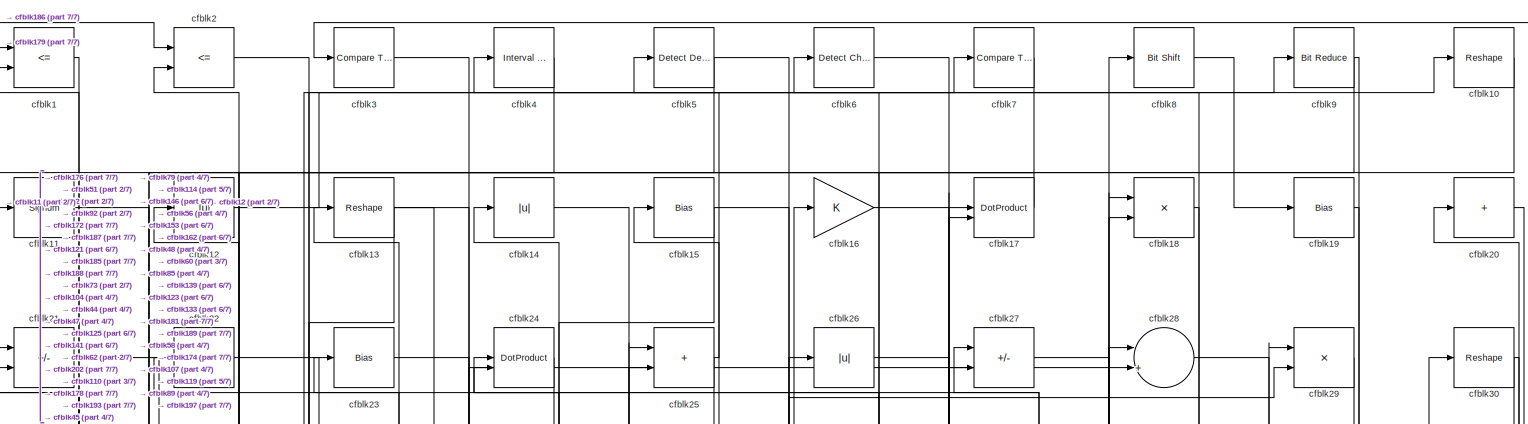
[diagram: root canvas - part 1/7, full width, top band]
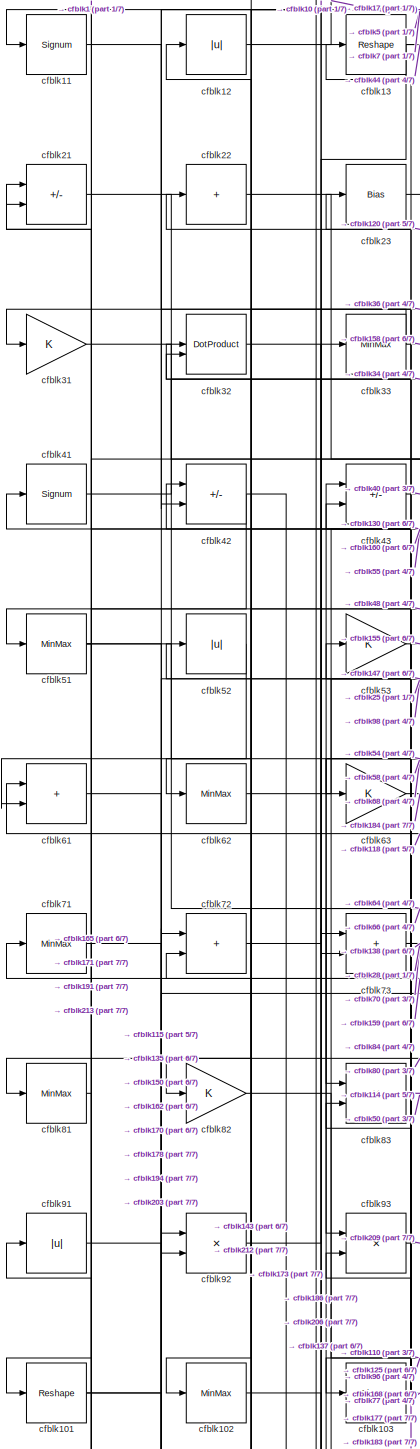
[diagram: root canvas - part 2/7, top left region]
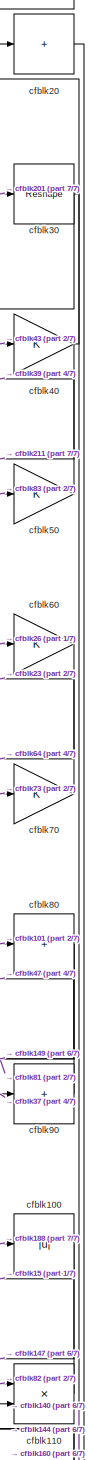
[diagram: root canvas - part 3/7, top right region]
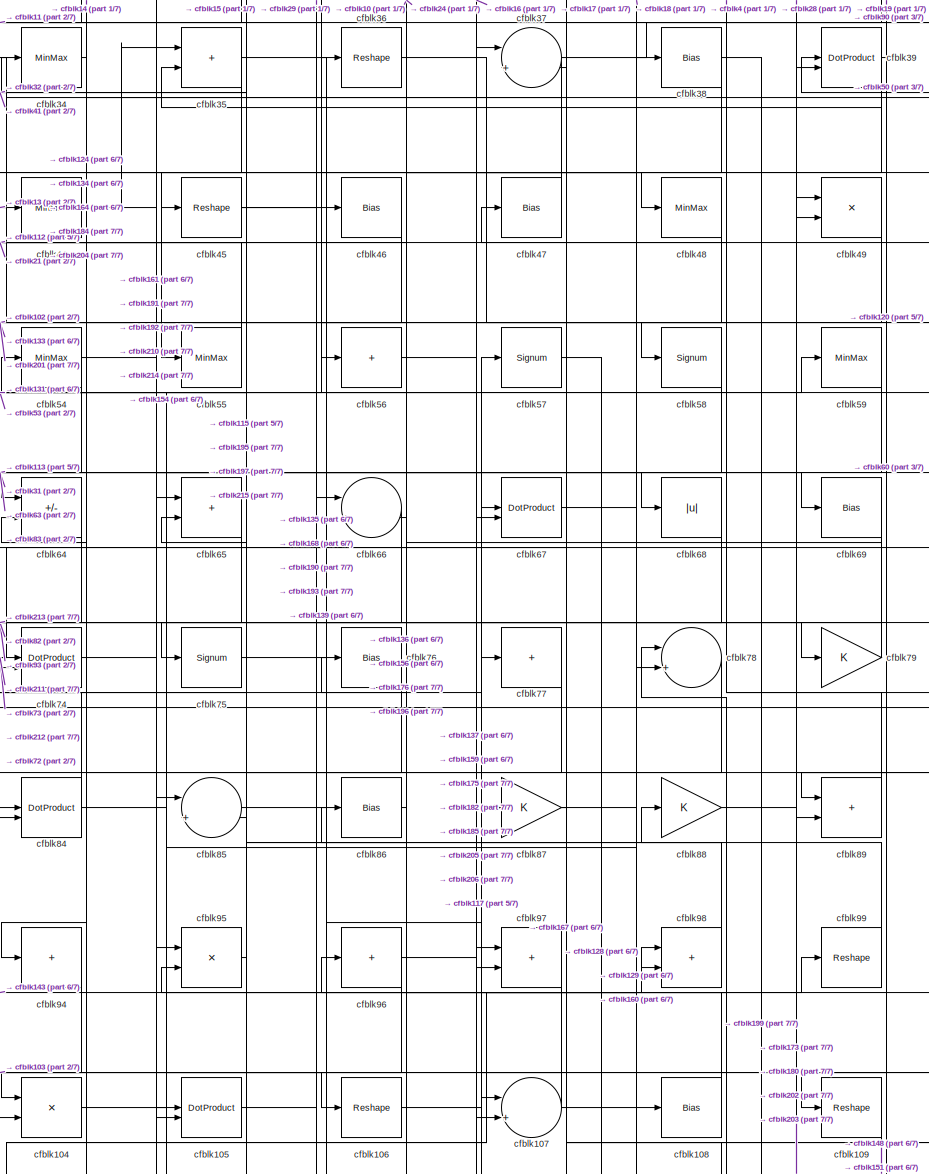
[diagram: root canvas - part 4/7, top center region]
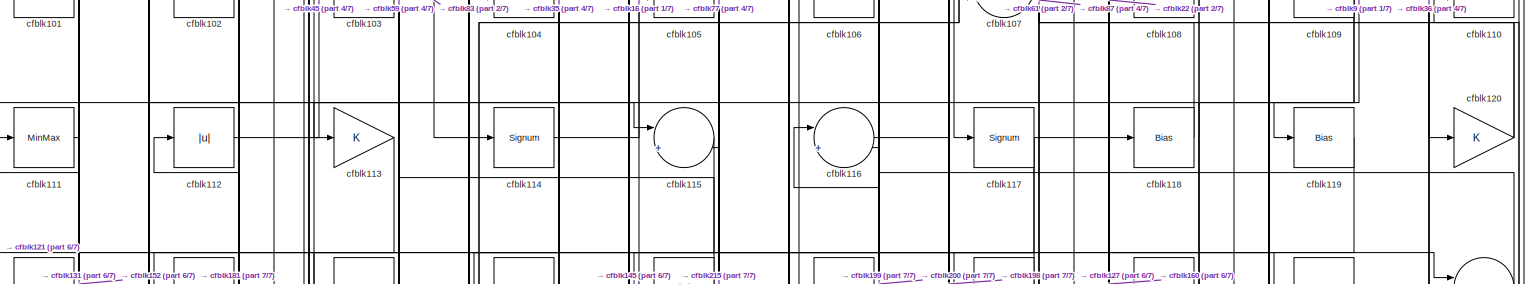
[diagram: root canvas - part 5/7, full width, middle band]
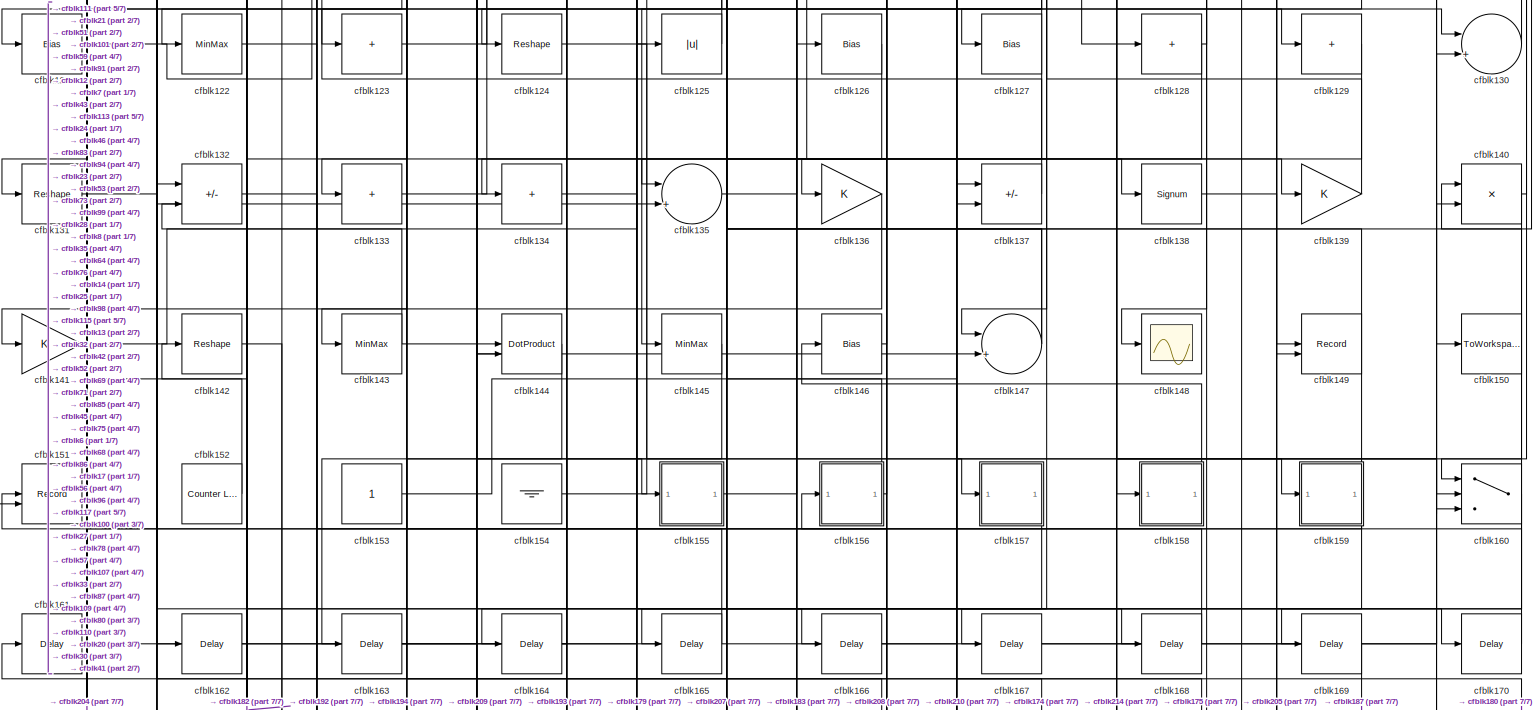
[diagram: root canvas - part 6/7, full width, middle band]
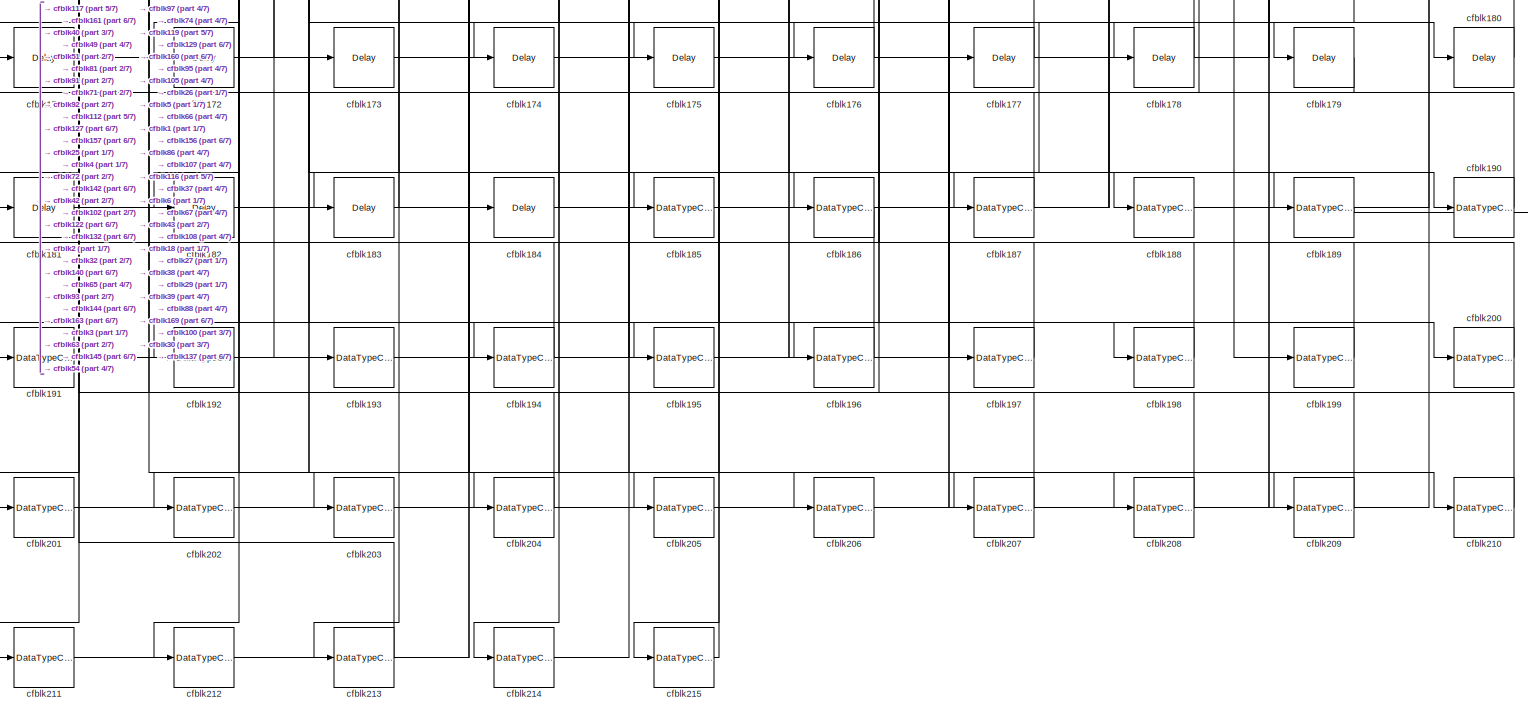
[diagram: root canvas - part 7/7, full width, bottom band]
MODEL slx_81360eead548
KIND model
CONFIG AbsTol = auto
CONFIG EnableMultiTasking = off
CONFIG FixedStep = auto
CONFIG MaxStep = auto
CONFIG MinStep = auto
CONFIG RelTol = 1e-3
CONFIG SampleTimeConstraint = Unconstrained
CONFIG SolverName = VariableStepAuto
CONFIG StartTime = 0.0
CONFIG StopTime = 10.0
BLOCK [RelationalOperator] cfblk1
  InputSameDT = off
  Operator = <=
  OutDataTypeStr = boolean
BLOCK [Reshape] cfblk10
BLOCK [Abs] cfblk100
  SaturateOnIntegerOverflow = off
BLOCK [Reshape] cfblk101
BLOCK [MinMax] cfblk102
BLOCK [Signum] cfblk103
BLOCK [Product] cfblk104
  Inputs = */
  RndMeth = Zero
  SaturateOnIntegerOverflow = on
BLOCK [DotProduct] cfblk105
  OutDataTypeStr = Inherit: Inherit via internal rule
BLOCK [Reshape] cfblk106
BLOCK [Sum] cfblk107
  Inputs = |++
BLOCK [Bias] cfblk108
  Bias = 0.0
  SaturateOnIntegerOverflow = off
BLOCK [Reshape] cfblk109
BLOCK [Signum] cfblk11
BLOCK [Product] cfblk110
  Inputs = */
  RndMeth = Zero
  SaturateOnIntegerOverflow = on
BLOCK [MinMax] cfblk111
BLOCK [Abs] cfblk112
  SaturateOnIntegerOverflow = off
BLOCK [Gain] cfblk113
BLOCK [Signum] cfblk114
BLOCK [Sum] cfblk115
  Inputs = |++
BLOCK [Sum] cfblk116
  Inputs = |++
BLOCK [Signum] cfblk117
BLOCK [Bias] cfblk118
  Bias = 0.0
  SaturateOnIntegerOverflow = off
BLOCK [Bias] cfblk119
  Bias = 0.0
  SaturateOnIntegerOverflow = off
BLOCK [Abs] cfblk12
  SaturateOnIntegerOverflow = off
BLOCK [Gain] cfblk120
BLOCK [Bias] cfblk121
  Bias = 0.0
  SaturateOnIntegerOverflow = off
BLOCK [MinMax] cfblk122
BLOCK [Sum] cfblk123
  IconShape = rectangular
  Inputs = +
BLOCK [Reshape] cfblk124
BLOCK [Abs] cfblk125
  SaturateOnIntegerOverflow = off
BLOCK [Bias] cfblk126
  Bias = 0.0
  SaturateOnIntegerOverflow = off
BLOCK [Bias] cfblk127
  Bias = 0.0
  SaturateOnIntegerOverflow = off
BLOCK [Sum] cfblk128
  IconShape = rectangular
  Inputs = +
BLOCK [Sum] cfblk129
  IconShape = rectangular
  Inputs = +
BLOCK [Reshape] cfblk13
BLOCK [Sum] cfblk130
  Inputs = |++
BLOCK [Reshape] cfblk131
BLOCK [Sum] cfblk132
  IconShape = rectangular
  Inputs = +-
BLOCK [Sum] cfblk133
  IconShape = rectangular
  Inputs = +
BLOCK [Sum] cfblk134
  IconShape = rectangular
  Inputs = +
BLOCK [Sum] cfblk135
  Inputs = |++
BLOCK [Gain] cfblk136
BLOCK [Sum] cfblk137
  IconShape = rectangular
  Inputs = +-
BLOCK [Signum] cfblk138
BLOCK [Gain] cfblk139
BLOCK [Abs] cfblk14
  SaturateOnIntegerOverflow = off
BLOCK [Product] cfblk140
  Inputs = */
  RndMeth = Zero
  SaturateOnIntegerOverflow = on
BLOCK [Gain] cfblk141
BLOCK [Reshape] cfblk142
BLOCK [MinMax] cfblk143
BLOCK [DotProduct] cfblk144
  OutDataTypeStr = Inherit: Inherit via internal rule
BLOCK [MinMax] cfblk145
BLOCK [Bias] cfblk146
  Bias = 0.0
  SaturateOnIntegerOverflow = off
BLOCK [Sum] cfblk147
  Inputs = |++
BLOCK [Scope] cfblk148
  Floating = off
  NumInputPorts = 1
  ScopeSpecificationString = Simulink.scopes.TimeScopeBlockCfg('CurrentConfiguration', extmgr.ConfigurationSet(extmgr.Configuration('Core','General UI',true),extmgr.Configuration('Core','Source UI',true),extmgr.Configuration('Sources','WiredSimulink',true,'DataLoggingVariableName','ScopeData2','DataLoggingSaveFormat','Array','DataLoggingLimitDataPoints',true,'DataLoggingDecimation','1'),extmgr.Configuration('Visuals','Time Do...<+868ch>
BLOCK [Record] cfblk149
  CompatibilityTag = XY
  FileSettingsInternal = {"entries":[{"content":{"excelSettings":{"content":{},"type":"Streamout.ExcelSettings"}},"type":"Streamout.FileSettingStorage","uuid":""}],"packageUris":["http:\/\/schema.mathworks.com\/mf0\/streamout_blocks\/R2020a"],"version":"1.0"}
  Layout = [1 1]
  SignalsInternal = {"entries":[{"content":{"signals":[{"content":{"blockPath":[],"dimensions":[1],"domain":"","lineColor":"#a2142f","plots":[1],"port":1,"signalID":2323,"signalName":"XY Graph:1"},"type":"RecordBlkView.Signal","uuid":""},{"content":{"blockPath":[],"dimensions":[1],"domain":"","lineColor":"#139fff","plots":[1],"port":2,"signalID":2326,"signalName":"XY Graph:2"},"type":"RecordBlkView.Signal","uuid":""}...<+146ch>
  VisualizationBindings = {"xyplotplugin":{"info":[{"series":[{"bindingParametersList":[{"parameter":"X-Axis","signalID":2323,"signalName":"XY Graph:1"},{"parameter":"Y-Axis","signalID":2326,"signalName":"XY Graph:2"}],"seriesID":49323}],"subplotID":1}]}}
  st = -1
BLOCK [Bias] cfblk15
  Bias = 0.0
  SaturateOnIntegerOverflow = off
BLOCK [ToWorkspace] cfblk150
  MaxDataPoints = inf
  SampleTime = -1
  SaveFormat = Timeseries
  VariableName = simout
BLOCK [Record] cfblk151
  CompatibilityTag = XY
  FileSettingsInternal = {"entries":[{"content":{"excelSettings":{"content":{},"type":"Streamout.ExcelSettings"}},"type":"Streamout.FileSettingStorage","uuid":""}],"packageUris":["http:\/\/schema.mathworks.com\/mf0\/streamout_blocks\/R2020a"],"version":"1.0"}
  Layout = [1 1]
  SignalsInternal = {"entries":[{"content":{"signals":[{"content":{"blockPath":[],"dimensions":[1],"domain":"","lineColor":"#a2142f","plots":[1],"port":1,"signalID":2331,"signalName":"XY Graph:1"},"type":"RecordBlkView.Signal","uuid":""},{"content":{"blockPath":[],"dimensions":[1],"domain":"","lineColor":"#139fff","plots":[1],"port":2,"signalID":2334,"signalName":"XY Graph:2"},"type":"RecordBlkView.Signal","uuid":""}...<+146ch>
  VisualizationBindings = {"xyplotplugin":{"info":[{"series":[{"bindingParametersList":[{"parameter":"X-Axis","signalID":2331,"signalName":"XY Graph:1"},{"parameter":"Y-Axis","signalID":2334,"signalName":"XY Graph:2"}],"seriesID":48579}],"subplotID":1}]}}
  st = -1
BLOCK [Reference] cfblk152  REF=hdlsllib/Sources/Counter
Limited
  SourceBlock = hdlsllib/Sources/Counter\nLimited
  SourceType = Counter Limited
BLOCK [Constant] cfblk153
  SampleTime = -1
BLOCK [Ground] cfblk154
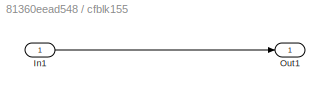
BLOCK [SubSystem] cfblk155
  LibrarySourceBlock = hdlsllib/Ports &\nSubsystems/Subsystem
BLOCK [Inport] cfblk155/In1
BLOCK [Outport] cfblk155/Out1
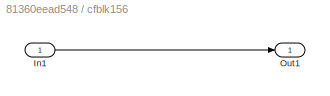
BLOCK [SubSystem] cfblk156
  LibrarySourceBlock = hdlsllib/Ports &\nSubsystems/Subsystem
BLOCK [Inport] cfblk156/In1
BLOCK [Outport] cfblk156/Out1
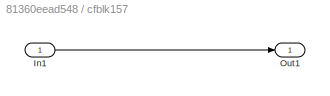
BLOCK [SubSystem] cfblk157
  LibrarySourceBlock = hdlsllib/Ports &\nSubsystems/Subsystem
BLOCK [Inport] cfblk157/In1
BLOCK [Outport] cfblk157/Out1
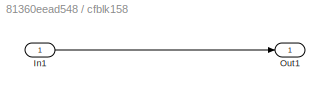
BLOCK [SubSystem] cfblk158
  LibrarySourceBlock = hdlsllib/Ports &\nSubsystems/Subsystem
BLOCK [Inport] cfblk158/In1
BLOCK [Outport] cfblk158/Out1
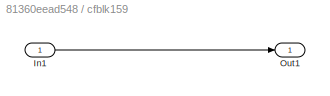
BLOCK [SubSystem] cfblk159
  LibrarySourceBlock = hdlsllib/Ports &\nSubsystems/Subsystem
BLOCK [Inport] cfblk159/In1
BLOCK [Outport] cfblk159/Out1
BLOCK [Gain] cfblk16
BLOCK [Switch] cfblk160
  InputSameDT = off
  SaturateOnIntegerOverflow = off
BLOCK [Delay] cfblk161
  InputPortMap = u0
  SampleTime = 1
BLOCK [Delay] cfblk162
  InputPortMap = u0
  SampleTime = 1
BLOCK [Delay] cfblk163
  InputPortMap = u0
  SampleTime = 1
BLOCK [Delay] cfblk164
  InputPortMap = u0
  SampleTime = 1
BLOCK [Delay] cfblk165
  InputPortMap = u0
  SampleTime = 1
BLOCK [Delay] cfblk166
  InputPortMap = u0
  SampleTime = 1
BLOCK [Delay] cfblk167
  InputPortMap = u0
  SampleTime = 1
BLOCK [Delay] cfblk168
  InputPortMap = u0
  SampleTime = 1
BLOCK [Delay] cfblk169
  InputPortMap = u0
  SampleTime = 1
BLOCK [DotProduct] cfblk17
  OutDataTypeStr = Inherit: Inherit via internal rule
BLOCK [Delay] cfblk170
  InputPortMap = u0
  SampleTime = 1
BLOCK [Delay] cfblk171
  InputPortMap = u0
  SampleTime = 1
BLOCK [Delay] cfblk172
  InputPortMap = u0
  SampleTime = 1
BLOCK [Delay] cfblk173
  InputPortMap = u0
  SampleTime = 1
BLOCK [Delay] cfblk174
  InputPortMap = u0
  SampleTime = 1
BLOCK [Delay] cfblk175
  InputPortMap = u0
  SampleTime = 1
BLOCK [Delay] cfblk176
  InputPortMap = u0
  SampleTime = 1
BLOCK [Delay] cfblk177
  InputPortMap = u0
  SampleTime = 1
BLOCK [Delay] cfblk178
  InputPortMap = u0
  SampleTime = 1
BLOCK [Delay] cfblk179
  InputPortMap = u0
  SampleTime = 1
BLOCK [Product] cfblk18
  Inputs = */
  RndMeth = Zero
  SaturateOnIntegerOverflow = on
BLOCK [Delay] cfblk180
  InputPortMap = u0
  SampleTime = 1
BLOCK [Delay] cfblk181
  InputPortMap = u0
  SampleTime = 1
BLOCK [Delay] cfblk182
  InputPortMap = u0
  SampleTime = 1
BLOCK [Delay] cfblk183
  InputPortMap = u0
  SampleTime = 1
BLOCK [Delay] cfblk184
  InputPortMap = u0
  SampleTime = 1
BLOCK [DataTypeConversion] cfblk185
  RndMeth = Floor
  SaturateOnIntegerOverflow = off
BLOCK [DataTypeConversion] cfblk186
  OutDataTypeStr = uint8
  RndMeth = Floor
  SaturateOnIntegerOverflow = off
BLOCK [DataTypeConversion] cfblk187
  OutDataTypeStr = uint8
  RndMeth = Floor
  SaturateOnIntegerOverflow = off
BLOCK [DataTypeConversion] cfblk188
  OutDataTypeStr = uint8
  RndMeth = Floor
  SaturateOnIntegerOverflow = off
BLOCK [DataTypeConversion] cfblk189
  OutDataTypeStr = uint8
  RndMeth = Floor
  SaturateOnIntegerOverflow = off
BLOCK [Bias] cfblk19
  Bias = 0.0
  SaturateOnIntegerOverflow = off
BLOCK [DataTypeConversion] cfblk190
  OutDataTypeStr = uint8
  RndMeth = Floor
  SaturateOnIntegerOverflow = off
BLOCK [DataTypeConversion] cfblk191
  OutDataTypeStr = uint8
  RndMeth = Floor
  SaturateOnIntegerOverflow = off
BLOCK [DataTypeConversion] cfblk192
  OutDataTypeStr = uint8
  RndMeth = Floor
  SaturateOnIntegerOverflow = off
BLOCK [DataTypeConversion] cfblk193
  RndMeth = Floor
  SaturateOnIntegerOverflow = off
BLOCK [DataTypeConversion] cfblk194
  OutDataTypeStr = uint8
  RndMeth = Floor
  SaturateOnIntegerOverflow = off
BLOCK [DataTypeConversion] cfblk195
  OutDataTypeStr = uint8
  RndMeth = Floor
  SaturateOnIntegerOverflow = off
BLOCK [DataTypeConversion] cfblk196
  OutDataTypeStr = uint8
  RndMeth = Floor
  SaturateOnIntegerOverflow = off
BLOCK [DataTypeConversion] cfblk197
  OutDataTypeStr = uint8
  RndMeth = Floor
  SaturateOnIntegerOverflow = off
BLOCK [DataTypeConversion] cfblk198
  OutDataTypeStr = uint8
  RndMeth = Floor
  SaturateOnIntegerOverflow = off
BLOCK [DataTypeConversion] cfblk199
  OutDataTypeStr = uint8
  RndMeth = Floor
  SaturateOnIntegerOverflow = off
BLOCK [RelationalOperator] cfblk2
  InputSameDT = off
  Operator = <=
  OutDataTypeStr = boolean
BLOCK [Sum] cfblk20
  IconShape = rectangular
  Inputs = +
BLOCK [DataTypeConversion] cfblk200
  OutDataTypeStr = uint8
  RndMeth = Floor
  SaturateOnIntegerOverflow = off
BLOCK [DataTypeConversion] cfblk201
  OutDataTypeStr = uint8
  RndMeth = Floor
  SaturateOnIntegerOverflow = off
BLOCK [DataTypeConversion] cfblk202
  OutDataTypeStr = uint8
  RndMeth = Floor
  SaturateOnIntegerOverflow = off
BLOCK [DataTypeConversion] cfblk203
  OutDataTypeStr = uint8
  RndMeth = Floor
  SaturateOnIntegerOverflow = off
BLOCK [DataTypeConversion] cfblk204
  OutDataTypeStr = uint8
  RndMeth = Floor
  SaturateOnIntegerOverflow = off
BLOCK [DataTypeConversion] cfblk205
  OutDataTypeStr = uint8
  RndMeth = Floor
  SaturateOnIntegerOverflow = off
BLOCK [DataTypeConversion] cfblk206
  OutDataTypeStr = uint8
  RndMeth = Floor
  SaturateOnIntegerOverflow = off
BLOCK [DataTypeConversion] cfblk207
  OutDataTypeStr = uint8
  RndMeth = Floor
  SaturateOnIntegerOverflow = off
BLOCK [DataTypeConversion] cfblk208
  OutDataTypeStr = uint8
  RndMeth = Floor
  SaturateOnIntegerOverflow = off
BLOCK [DataTypeConversion] cfblk209
  OutDataTypeStr = uint8
  RndMeth = Floor
  SaturateOnIntegerOverflow = off
BLOCK [Sum] cfblk21
  IconShape = rectangular
  Inputs = +-
BLOCK [DataTypeConversion] cfblk210
  OutDataTypeStr = uint8
  RndMeth = Floor
  SaturateOnIntegerOverflow = off
BLOCK [DataTypeConversion] cfblk211
  OutDataTypeStr = uint8
  RndMeth = Floor
  SaturateOnIntegerOverflow = off
BLOCK [DataTypeConversion] cfblk212
  OutDataTypeStr = uint8
  RndMeth = Floor
  SaturateOnIntegerOverflow = off
BLOCK [DataTypeConversion] cfblk213
  OutDataTypeStr = uint8
  RndMeth = Floor
  SaturateOnIntegerOverflow = off
BLOCK [DataTypeConversion] cfblk214
  OutDataTypeStr = uint8
  RndMeth = Floor
  SaturateOnIntegerOverflow = off
BLOCK [DataTypeConversion] cfblk215
  OutDataTypeStr = uint8
  RndMeth = Floor
  SaturateOnIntegerOverflow = off
BLOCK [Sum] cfblk22
  IconShape = rectangular
  Inputs = +
BLOCK [Bias] cfblk23
  Bias = 0.0
  SaturateOnIntegerOverflow = off
BLOCK [DotProduct] cfblk24
  OutDataTypeStr = Inherit: Inherit via internal rule
BLOCK [Sum] cfblk25
  IconShape = rectangular
BLOCK [Abs] cfblk26
  SaturateOnIntegerOverflow = off
BLOCK [Sum] cfblk27
  IconShape = rectangular
  Inputs = +-
BLOCK [Sum] cfblk28
  Inputs = |++
BLOCK [Product] cfblk29
  Inputs = */
  RndMeth = Zero
  SaturateOnIntegerOverflow = on
BLOCK [Reference] cfblk3  REF=hdlsllib/Logic and Bit
Operations/Compare
To Zero
  SourceBlock = hdlsllib/Logic and Bit\nOperations/Compare\nTo Zero
  SourceType = Compare To Zero
BLOCK [Reshape] cfblk30
BLOCK [Gain] cfblk31
BLOCK [DotProduct] cfblk32
  OutDataTypeStr = Inherit: Inherit via internal rule
BLOCK [MinMax] cfblk33
BLOCK [MinMax] cfblk34
BLOCK [Sum] cfblk35
  IconShape = rectangular
BLOCK [Reshape] cfblk36
BLOCK [Sum] cfblk37
  Inputs = |++
BLOCK [Bias] cfblk38
  Bias = 0.0
  SaturateOnIntegerOverflow = off
BLOCK [DotProduct] cfblk39
  OutDataTypeStr = Inherit: Inherit via internal rule
BLOCK [Reference] cfblk4  REF=hdlsllib/Logic and Bit
Operations/Interval Test
  SourceBlock = hdlsllib/Logic and Bit\nOperations/Interval Test
  SourceType = Interval Test
BLOCK [Gain] cfblk40
BLOCK [Signum] cfblk41
BLOCK [Sum] cfblk42
  IconShape = rectangular
  Inputs = +-
BLOCK [Sum] cfblk43
  IconShape = rectangular
  Inputs = +-
BLOCK [MinMax] cfblk44
BLOCK [Reshape] cfblk45
BLOCK [Bias] cfblk46
  Bias = 0.0
  SaturateOnIntegerOverflow = off
BLOCK [Bias] cfblk47
  Bias = 0.0
  SaturateOnIntegerOverflow = off
BLOCK [MinMax] cfblk48
BLOCK [Product] cfblk49
  Inputs = */
  RndMeth = Zero
  SaturateOnIntegerOverflow = on
BLOCK [Reference] cfblk5  REF=simulink/Logic and Bit
Operations/Detect
Decrease
  LibrarySourceBlock = hdlsllib/Logic and Bit\nOperations/Detect\nDecrease
  SourceBlock = simulink/Logic and Bit\nOperations/Detect\nDecrease
  SourceType = Detect Decrease
BLOCK [Gain] cfblk50
BLOCK [MinMax] cfblk51
BLOCK [Abs] cfblk52
  SaturateOnIntegerOverflow = off
BLOCK [Gain] cfblk53
BLOCK [MinMax] cfblk54
BLOCK [MinMax] cfblk55
BLOCK [Sum] cfblk56
  IconShape = rectangular
  Inputs = +
BLOCK [Signum] cfblk57
BLOCK [Signum] cfblk58
BLOCK [MinMax] cfblk59
BLOCK [Reference] cfblk6  REF=simulink/Logic and Bit
Operations/Detect
Change
  LibrarySourceBlock = hdlsllib/Logic and Bit\nOperations/Detect\nChange
  SourceBlock = simulink/Logic and Bit\nOperations/Detect\nChange
  SourceType = Detect Change
BLOCK [Gain] cfblk60
BLOCK [Sum] cfblk61
  IconShape = rectangular
BLOCK [MinMax] cfblk62
BLOCK [Gain] cfblk63
BLOCK [Sum] cfblk64
  IconShape = rectangular
  Inputs = +-
BLOCK [Sum] cfblk65
  IconShape = rectangular
BLOCK [Sum] cfblk66
  Inputs = |++
BLOCK [DotProduct] cfblk67
  OutDataTypeStr = Inherit: Inherit via internal rule
BLOCK [Abs] cfblk68
  SaturateOnIntegerOverflow = off
BLOCK [Bias] cfblk69
  Bias = 0.0
  SaturateOnIntegerOverflow = off
BLOCK [Reference] cfblk7  REF=hdlsllib/Logic and Bit
Operations/Compare
To Constant
  SourceBlock = hdlsllib/Logic and Bit\nOperations/Compare\nTo Constant
  SourceType = Compare To Constant
BLOCK [Gain] cfblk70
BLOCK [MinMax] cfblk71
BLOCK [Sum] cfblk72
  IconShape = rectangular
BLOCK [Sum] cfblk73
  IconShape = rectangular
BLOCK [DotProduct] cfblk74
  OutDataTypeStr = Inherit: Inherit via internal rule
BLOCK [Signum] cfblk75
BLOCK [Bias] cfblk76
  Bias = 0.0
  SaturateOnIntegerOverflow = off
BLOCK [Sum] cfblk77
  IconShape = rectangular
  Inputs = +
BLOCK [Sum] cfblk78
  Inputs = |++
BLOCK [Gain] cfblk79
BLOCK [Reference] cfblk8  REF=hdlsllib/Logic and Bit
Operations/Bit Shift
  SourceBlock = hdlsllib/Logic and Bit\nOperations/Bit Shift
  SourceType = Bit Shift
BLOCK [Sum] cfblk80
  IconShape = rectangular
  Inputs = +
BLOCK [MinMax] cfblk81
BLOCK [Gain] cfblk82
BLOCK [Product] cfblk83
  Inputs = */
  RndMeth = Zero
  SaturateOnIntegerOverflow = on
BLOCK [DotProduct] cfblk84
  OutDataTypeStr = Inherit: Inherit via internal rule
BLOCK [Sum] cfblk85
  Inputs = |++
BLOCK [Bias] cfblk86
  Bias = 0.0
  SaturateOnIntegerOverflow = off
BLOCK [Gain] cfblk87
BLOCK [Gain] cfblk88
BLOCK [Sum] cfblk89
  IconShape = rectangular
BLOCK [Reference] cfblk9  REF=hdlsllib/Logic and Bit
Operations/Bit Reduce
  SourceBlock = hdlsllib/Logic and Bit\nOperations/Bit Reduce
  SourceType = Bit Reduce
BLOCK [Sum] cfblk90
  IconShape = rectangular
  Inputs = +
BLOCK [Abs] cfblk91
  SaturateOnIntegerOverflow = off
BLOCK [Product] cfblk92
  Inputs = */
  RndMeth = Zero
  SaturateOnIntegerOverflow = on
BLOCK [Product] cfblk93
  Inputs = */
  RndMeth = Zero
  SaturateOnIntegerOverflow = on
BLOCK [Sum] cfblk94
  IconShape = rectangular
  Inputs = +
BLOCK [Product] cfblk95
  Inputs = */
  RndMeth = Zero
  SaturateOnIntegerOverflow = on
BLOCK [Sum] cfblk96
  IconShape = rectangular
  Inputs = +
BLOCK [Sum] cfblk97
  IconShape = rectangular
BLOCK [Sum] cfblk98
  IconShape = rectangular
BLOCK [Reshape] cfblk99
LINE cfblk100:1 -> cfblk147:1
NET cfblk101:1 -> cfblk135:2, cfblk80:1
LINE cfblk102:1 -> cfblk206:1
LINE cfblk103:1 -> cfblk77:1
LINE cfblk104:1 -> cfblk18:1
LINE cfblk105:1 -> cfblk190:1
LINE cfblk106:1 -> cfblk57:1
NET cfblk107:1 -> cfblk160:3, cfblk96:1
LINE cfblk108:1 -> cfblk76:1
NET cfblk109:1 -> cfblk148:1, cfblk151:2
LINE cfblk10:1 -> cfblk56:1
LINE cfblk110:1 -> cfblk15:1
LINE cfblk111:1 -> cfblk131:1
LINE cfblk112:1 -> cfblk45:1
LINE cfblk113:1 -> cfblk121:1
LINE cfblk114:1 -> cfblk16:1
LINE cfblk115:1 -> cfblk145:1
LINE cfblk116:1 -> cfblk198:1
NET cfblk117:1 -> cfblk127:1, cfblk160:2, cfblk181:1
LINE cfblk118:1 -> cfblk61:1
LINE cfblk119:1 -> cfblk215:1
LINE cfblk11:1 -> cfblk36:1
NET cfblk120:1 -> cfblk22:1, cfblk87:1
LINE cfblk121:1 -> cfblk7:1
LINE cfblk122:1 -> cfblk179:1
LINE cfblk123:1 -> cfblk28:1
LINE cfblk124:1 -> cfblk157:1
LINE cfblk125:1 -> cfblk13:1
LINE cfblk126:1 -> cfblk165:1
NET cfblk127:1 -> cfblk122:1, cfblk192:1
NET cfblk128:1 -> cfblk164:1, cfblk98:2
LINE cfblk129:1 -> cfblk205:1
LINE cfblk12:1 -> cfblk9:1
LINE cfblk130:1 -> cfblk41:1
LINE cfblk131:1 -> cfblk59:1
LINE cfblk132:1 -> cfblk207:1
LINE cfblk133:1 -> cfblk8:1
LINE cfblk134:1 -> cfblk166:1
LINE cfblk135:1 -> cfblk46:1
LINE cfblk136:1 -> cfblk141:1
LINE cfblk137:1 -> cfblk43:1
LINE cfblk138:1 -> cfblk149:1
LINE cfblk139:1 -> cfblk27:1
NET cfblk13:1 -> cfblk147:2, cfblk44:1, cfblk73:2
NET cfblk140:1 -> cfblk110:2, cfblk183:1
LINE cfblk141:1 -> cfblk25:2
LINE cfblk142:1 -> cfblk193:1
NET cfblk143:1 -> cfblk12:1, cfblk99:1
LINE cfblk144:1 -> cfblk163:1
LINE cfblk145:1 -> cfblk214:1
LINE cfblk146:1 -> cfblk6:1
NET cfblk147:1 -> cfblk32:2, cfblk52:1
LINE cfblk14:1 -> cfblk125:1
LINE cfblk152:1 -> cfblk111:1
LINE cfblk153:1 -> cfblk27:2
LINE cfblk154:1 -> cfblk98:1
LINE cfblk155/In1:1 -> cfblk155/Out1:1
LINE cfblk155:1 -> cfblk126:1
LINE cfblk156/In1:1 -> cfblk156/Out1:1
NET cfblk156:1 -> cfblk85:2, cfblk86:1
LINE cfblk157/In1:1 -> cfblk157/Out1:1
LINE cfblk157:1 -> cfblk182:1
LINE cfblk158/In1:1 -> cfblk158/Out1:1
LINE cfblk158:1 -> cfblk146:1
LINE cfblk159/In1:1 -> cfblk159/Out1:1
NET cfblk159:1 -> cfblk151:1, cfblk169:1, cfblk71:1
NET cfblk15:1 -> cfblk104:1, cfblk79:1
NET cfblk160:1 -> cfblk174:1, cfblk175:1, cfblk42:1
LINE cfblk161:1 -> cfblk85:1
LINE cfblk162:1 -> cfblk17:1
LINE cfblk163:1 -> cfblk208:1
LINE cfblk164:1 -> cfblk64:2
LINE cfblk165:1 -> cfblk21:2
LINE cfblk166:1 -> cfblk140:2
LINE cfblk167:1 -> cfblk130:2
LINE cfblk168:1 -> cfblk83:2
LINE cfblk169:1 -> cfblk187:1
LINE cfblk16:1 -> cfblk48:1
LINE cfblk170:1 -> cfblk73:1
LINE cfblk171:1 -> cfblk92:1
LINE cfblk172:1 -> cfblk200:1
LINE cfblk173:1 -> cfblk39:2
LINE cfblk174:1 -> cfblk29:1
LINE cfblk175:1 -> cfblk107:2
LINE cfblk176:1 -> cfblk1:2
LINE cfblk177:1 -> cfblk43:2
LINE cfblk178:1 -> cfblk72:1
LINE cfblk179:1 -> cfblk1:1
LINE cfblk17:1 -> cfblk11:1
LINE cfblk180:1 -> cfblk137:1
LINE cfblk181:1 -> cfblk18:2
LINE cfblk182:1 -> cfblk37:1
LINE cfblk183:1 -> cfblk93:2
LINE cfblk184:1 -> cfblk54:1
NET cfblk185:1 -> cfblk108:1, cfblk38:1, cfblk67:2
LINE cfblk186:1 -> cfblk2:1
LINE cfblk187:1 -> cfblk2:2
LINE cfblk188:1 -> cfblk100:1
LINE cfblk189:1 -> cfblk3:1
LINE cfblk18:1 -> cfblk58:1
LINE cfblk190:1 -> cfblk88:1
LINE cfblk191:1 -> cfblk105:1
LINE cfblk192:1 -> cfblk105:2
NET cfblk193:1 -> cfblk26:1, cfblk66:1
LINE cfblk194:1 -> cfblk142:1
LINE cfblk195:1 -> cfblk177:1
LINE cfblk196:1 -> cfblk95:1
LINE cfblk197:1 -> cfblk95:2
LINE cfblk198:1 -> cfblk112:1
LINE cfblk199:1 -> cfblk116:1
LINE cfblk19:1 -> cfblk89:1
LINE cfblk1:1 -> cfblk51:1
LINE cfblk200:1 -> cfblk116:2
LINE cfblk201:1 -> cfblk30:1
LINE cfblk202:1 -> cfblk49:1
LINE cfblk203:1 -> cfblk49:2
LINE cfblk204:1 -> cfblk161:1
LINE cfblk205:1 -> cfblk97:1
LINE cfblk206:1 -> cfblk97:2
LINE cfblk207:1 -> cfblk156:1
LINE cfblk208:1 -> cfblk132:1
LINE cfblk209:1 -> cfblk132:2
LINE cfblk20:1 -> cfblk140:1
LINE cfblk210:1 -> cfblk144:1
LINE cfblk211:1 -> cfblk74:1
LINE cfblk212:1 -> cfblk74:2
LINE cfblk213:1 -> cfblk91:1
LINE cfblk214:1 -> cfblk65:1
LINE cfblk215:1 -> cfblk65:2
LINE cfblk21:1 -> cfblk84:1
LINE cfblk22:1 -> cfblk118:1
LINE cfblk23:1 -> cfblk130:1
LINE cfblk24:1 -> cfblk123:1
NET cfblk25:1 -> cfblk202:1, cfblk5:1
LINE cfblk26:1 -> cfblk60:1
LINE cfblk27:1 -> cfblk189:1
LINE cfblk28:1 -> cfblk89:2
LINE cfblk29:1 -> cfblk107:1
LINE cfblk2:1 -> cfblk185:1
NET cfblk30:1 -> cfblk144:2, cfblk160:1
LINE cfblk31:1 -> cfblk68:1
LINE cfblk32:1 -> cfblk186:1
NET cfblk33:1 -> cfblk158:1, cfblk31:1
LINE cfblk34:1 -> cfblk94:1
NET cfblk35:1 -> cfblk117:1, cfblk124:1
LINE cfblk36:1 -> cfblk120:1
NET cfblk37:1 -> cfblk66:2, cfblk90:1
NET cfblk38:1 -> cfblk176:1, cfblk199:1
NET cfblk39:1 -> cfblk109:1, cfblk35:2, cfblk55:1
LINE cfblk3:1 -> cfblk188:1
NET cfblk40:1 -> cfblk20:1, cfblk211:1
LINE cfblk41:1 -> cfblk34:1
NET cfblk42:1 -> cfblk101:1, cfblk173:1
LINE cfblk43:1 -> cfblk40:1
NET cfblk44:1 -> cfblk24:2, cfblk35:1, cfblk67:1
NET cfblk45:1 -> cfblk168:1, cfblk29:2
LINE cfblk46:1 -> cfblk133:1
LINE cfblk47:1 -> cfblk14:1
LINE cfblk48:1 -> cfblk102:1
LINE cfblk49:1 -> cfblk201:1
LINE cfblk4:1 -> cfblk172:1
LINE cfblk50:1 -> cfblk39:1
NET cfblk51:1 -> cfblk150:1, cfblk191:1, cfblk194:1
LINE cfblk52:1 -> cfblk61:2
LINE cfblk53:1 -> cfblk155:1
NET cfblk54:1 -> cfblk63:1, cfblk69:1
LINE cfblk55:1 -> cfblk21:1
LINE cfblk56:1 -> cfblk137:2
LINE cfblk57:1 -> cfblk128:1
LINE cfblk58:1 -> cfblk83:1
LINE cfblk59:1 -> cfblk113:1
NET cfblk5:1 -> cfblk178:1, cfblk42:2
LINE cfblk60:1 -> cfblk64:1
LINE cfblk61:1 -> cfblk115:1
LINE cfblk62:1 -> cfblk25:1
LINE cfblk63:1 -> cfblk184:1
LINE cfblk64:1 -> cfblk93:1
LINE cfblk65:1 -> cfblk213:1
LINE cfblk66:1 -> cfblk82:1
LINE cfblk67:1 -> cfblk78:2
NET cfblk68:1 -> cfblk136:1, cfblk75:1
NET cfblk69:1 -> cfblk104:2, cfblk135:1
LINE cfblk6:1 -> cfblk197:1
LINE cfblk70:1 -> cfblk23:1
NET cfblk71:1 -> cfblk170:1, cfblk203:1
NET cfblk72:1 -> cfblk212:1, cfblk33:1
NET cfblk73:1 -> cfblk138:1, cfblk28:2, cfblk70:1, cfblk84:2
LINE cfblk74:1 -> cfblk210:1
LINE cfblk75:1 -> cfblk139:1
LINE cfblk76:1 -> cfblk134:1
LINE cfblk77:1 -> cfblk115:2
LINE cfblk78:1 -> cfblk167:1
LINE cfblk79:1 -> cfblk24:1
LINE cfblk7:1 -> cfblk62:1
NET cfblk80:1 -> cfblk149:2, cfblk81:1
LINE cfblk81:1 -> cfblk171:1
LINE cfblk82:1 -> cfblk110:1
NET cfblk83:1 -> cfblk114:1, cfblk50:1
NET cfblk84:1 -> cfblk106:1, cfblk72:2
LINE cfblk85:1 -> cfblk17:2
LINE cfblk86:1 -> cfblk196:1
NET cfblk87:1 -> cfblk129:1, cfblk37:2
LINE cfblk88:1 -> cfblk180:1
LINE cfblk89:1 -> cfblk4:1
LINE cfblk8:1 -> cfblk19:1
LINE cfblk90:1 -> cfblk47:1
LINE cfblk91:1 -> cfblk162:1
LINE cfblk92:1 -> cfblk10:1
LINE cfblk93:1 -> cfblk209:1
LINE cfblk94:1 -> cfblk143:1
LINE cfblk95:1 -> cfblk195:1
NET cfblk96:1 -> cfblk103:1, cfblk159:1
LINE cfblk97:1 -> cfblk204:1
NET cfblk98:1 -> cfblk32:1, cfblk53:1
LINE cfblk99:1 -> cfblk78:1
NET cfblk9:1 -> cfblk119:1, cfblk92:2
note: NET lines group one-source signal fan-out (src -> all destinations, sorted); 1:1 wires keep LINE
